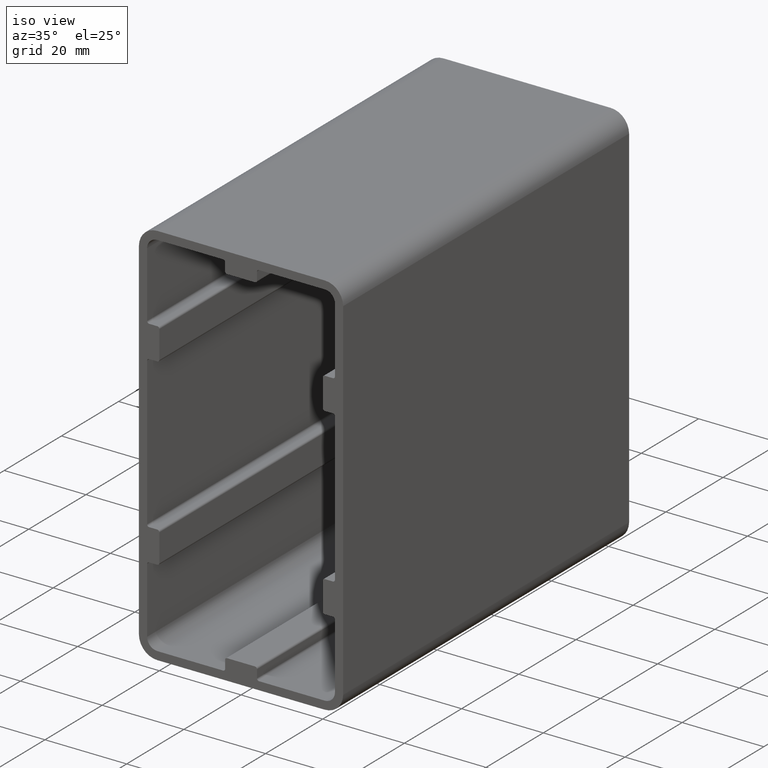
[diagram: clean part render]
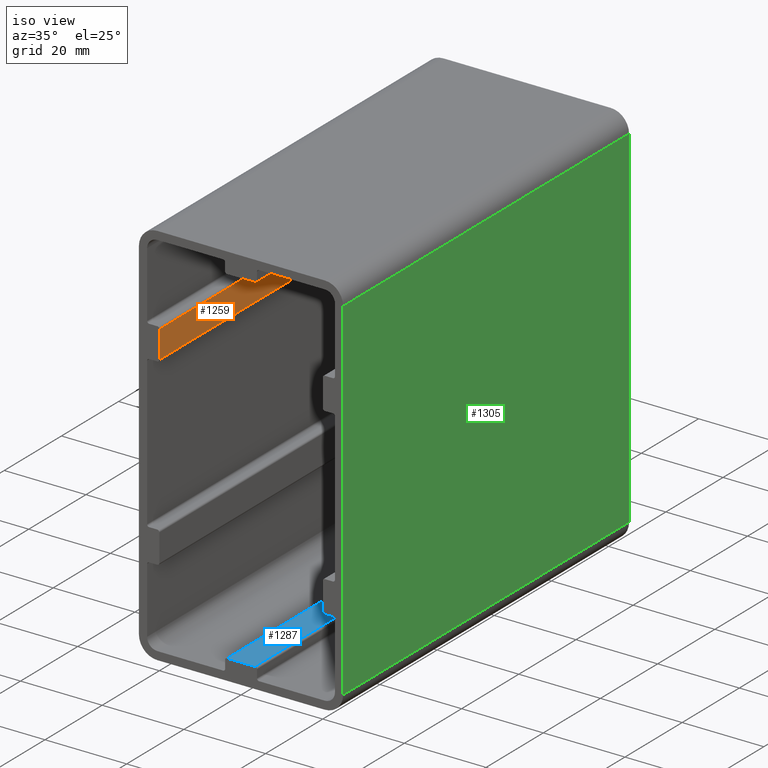
[diagram: same view with three faces highlighted in distinct colors, each labeled with its STEP entity id]
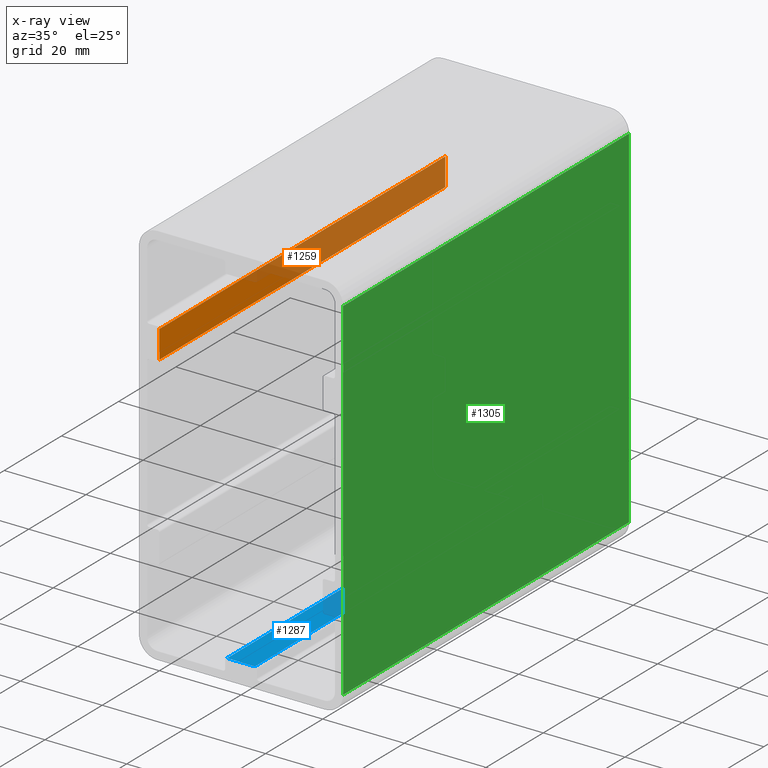
[diagram: x-ray of the same camera — body ghosted, the three highlighted faces saturated]
A machine part, iso view with three faces highlighted in distinct colors.
The next image is the same camera in x-ray (body ghosted, the three faces saturated) — at least one of them is partly hidden behind the body in this view.
Their STEP definitions:

[orange] entity #1259 — the highlighted planar face has unit normal (-1, 0, 0).
#25=PLANE('',#1387);
#69=FACE_OUTER_BOUND('',#136,.T.);
#136=EDGE_LOOP('',(#957,#958,#959,#960));
#191=LINE('',#1875,#319);
#247=LINE('',#2058,#375);
#248=LINE('',#2061,#376);
#249=LINE('',#2062,#377);
#319=VECTOR('',#1481,10.);
#375=VECTOR('',#1641,10.);
#376=VECTOR('',#1644,10.);
#377=VECTOR('',#1645,10.);
#515=VERTEX_POINT('',#1871);
#517=VERTEX_POINT('',#1874);
#592=VERTEX_POINT('',#2056);
#593=VERTEX_POINT('',#2060);
#645=EDGE_CURVE('',#515,#517,#191,.T.);
#737=EDGE_CURVE('',#592,#515,#247,.T.);
#738=EDGE_CURVE('',#593,#592,#248,.T.);
#739=EDGE_CURVE('',#517,#593,#249,.T.);
#957=ORIENTED_EDGE('',*,*,#737,.F.);
#958=ORIENTED_EDGE('',*,*,#738,.F.);
#959=ORIENTED_EDGE('',*,*,#739,.F.);
#960=ORIENTED_EDGE('',*,*,#645,.F.);
#1259=ADVANCED_FACE('',(#69),#25,.F.);
#1387=AXIS2_PLACEMENT_3D('',#2059,#1642,#1643);
#1481=DIRECTION('',(0.,0.,1.));
#1641=DIRECTION('',(0.,-1.,0.));
#1642=DIRECTION('center_axis',(-1.,0.,0.));
#1643=DIRECTION('ref_axis',(0.,0.,-1.));
#1644=DIRECTION('',(0.,0.,-1.));
#1645=DIRECTION('',(0.,1.,0.));
#1871=CARTESIAN_POINT('',(-20.,0.,19.1));
#1874=CARTESIAN_POINT('',(-20.,0.,25.9));
#1875=CARTESIAN_POINT('',(-20.,0.,13.2));
#2056=CARTESIAN_POINT('',(-20.,100.,19.1));
#2058=CARTESIAN_POINT('',(-20.,100.,19.1));
#2059=CARTESIAN_POINT('Origin',(-20.,100.,26.4));
#2060=CARTESIAN_POINT('',(-20.,100.,25.9));
#2061=CARTESIAN_POINT('',(-20.,100.,13.2));
#2062=CARTESIAN_POINT('',(-20.,100.,25.9));

[blue] entity #1287 — the highlighted planar face has unit normal (0, 0, -1).
#37=PLANE('',#1431);
#97=FACE_OUTER_BOUND('',#164,.T.);
#164=EDGE_LOOP('',(#1069,#1070,#1071,#1072));
#210=LINE('',#1951,#338);
#288=LINE('',#2172,#416);
#289=LINE('',#2175,#417);
#290=LINE('',#2176,#418);
#338=VECTOR('',#1538,10.);
#416=VECTOR('',#1770,10.);
#417=VECTOR('',#1773,10.);
#418=VECTOR('',#1774,10.);
#554=VERTEX_POINT('',#1948);
#555=VERTEX_POINT('',#1950);
#621=VERTEX_POINT('',#2170);
#622=VERTEX_POINT('',#2174);
#683=EDGE_CURVE('',#554,#555,#210,.T.);
#794=EDGE_CURVE('',#621,#554,#288,.T.);
#795=EDGE_CURVE('',#622,#621,#289,.T.);
#796=EDGE_CURVE('',#555,#622,#290,.T.);
#1069=ORIENTED_EDGE('',*,*,#794,.F.);
#1070=ORIENTED_EDGE('',*,*,#795,.F.);
#1071=ORIENTED_EDGE('',*,*,#796,.F.);
#1072=ORIENTED_EDGE('',*,*,#683,.F.);
#1287=ADVANCED_FACE('',(#97),#37,.F.);
#1431=AXIS2_PLACEMENT_3D('',#2173,#1771,#1772);
#1538=DIRECTION('',(-1.,0.,0.));
#1770=DIRECTION('',(0.,-1.,0.));
#1771=DIRECTION('center_axis',(0.,0.,-1.));
#1772=DIRECTION('ref_axis',(1.,0.,0.));
#1773=DIRECTION('',(1.,0.,0.));
#1774=DIRECTION('',(0.,1.,0.));
#1948=CARTESIAN_POINT('',(3.4,0.,-42.5));
#1950=CARTESIAN_POINT('',(-3.4,0.,-42.5));
#1951=CARTESIAN_POINT('',(-1.95,0.,-42.5));
#2170=CARTESIAN_POINT('',(3.4,100.,-42.5));
#2172=CARTESIAN_POINT('',(3.4,100.,-42.5));
#2173=CARTESIAN_POINT('Origin',(-3.9,100.,-42.5));
#2174=CARTESIAN_POINT('',(-3.4,100.,-42.5));
#2175=CARTESIAN_POINT('',(-1.95,100.,-42.5));
#2176=CARTESIAN_POINT('',(-3.4,100.,-42.5));

[green] entity #1305 — the highlighted planar face has unit normal (1, 0, 0).
#49=PLANE('',#1455);
#115=FACE_OUTER_BOUND('',#182,.T.);
#182=EDGE_LOOP('',(#1141,#1142,#1143,#1144));
#188=LINE('',#1863,#316);
#221=LINE('',#1990,#349);
#223=LINE('',#1996,#351);
#312=LINE('',#2232,#440);
#316=VECTOR('',#1472,10.);
#349=VECTOR('',#1571,10.);
#351=VECTOR('',#1577,10.);
#440=VECTOR('',#1844,10.);
#510=VERTEX_POINT('',#1860);
#511=VERTEX_POINT('',#1862);
#572=VERTEX_POINT('',#1988);
#573=VERTEX_POINT('',#1992);
#639=EDGE_CURVE('',#511,#510,#188,.T.);
#703=EDGE_CURVE('',#572,#510,#221,.T.);
#706=EDGE_CURVE('',#511,#573,#223,.T.);
#824=EDGE_CURVE('',#573,#572,#312,.T.);
#1141=ORIENTED_EDGE('',*,*,#703,.F.);
#1142=ORIENTED_EDGE('',*,*,#824,.F.);
#1143=ORIENTED_EDGE('',*,*,#706,.F.);
#1144=ORIENTED_EDGE('',*,*,#639,.T.);
#1305=ADVANCED_FACE('',(#115),#49,.T.);
#1455=AXIS2_PLACEMENT_3D('',#2231,#1842,#1843);
#1472=DIRECTION('',(0.,0.,-1.));
#1571=DIRECTION('',(0.,-1.,0.));
#1577=DIRECTION('',(0.,1.,0.));
#1842=DIRECTION('center_axis',(1.,0.,0.));
#1843=DIRECTION('ref_axis',(0.,0.,-1.));
#1844=DIRECTION('',(0.,0.,-1.));
#1860=CARTESIAN_POINT('',(25.,0.,-43.));
#1862=CARTESIAN_POINT('',(25.,0.,43.));
#1863=CARTESIAN_POINT('',(25.,0.,47.5));
#1988=CARTESIAN_POINT('',(25.,100.,-43.));
#1990=CARTESIAN_POINT('',(25.,0.,-43.));
#1992=CARTESIAN_POINT('',(25.,100.,43.));
#1996=CARTESIAN_POINT('',(25.,0.,43.));
#2231=CARTESIAN_POINT('Origin',(25.,0.,47.5));
#2232=CARTESIAN_POINT('',(25.,100.,47.5));